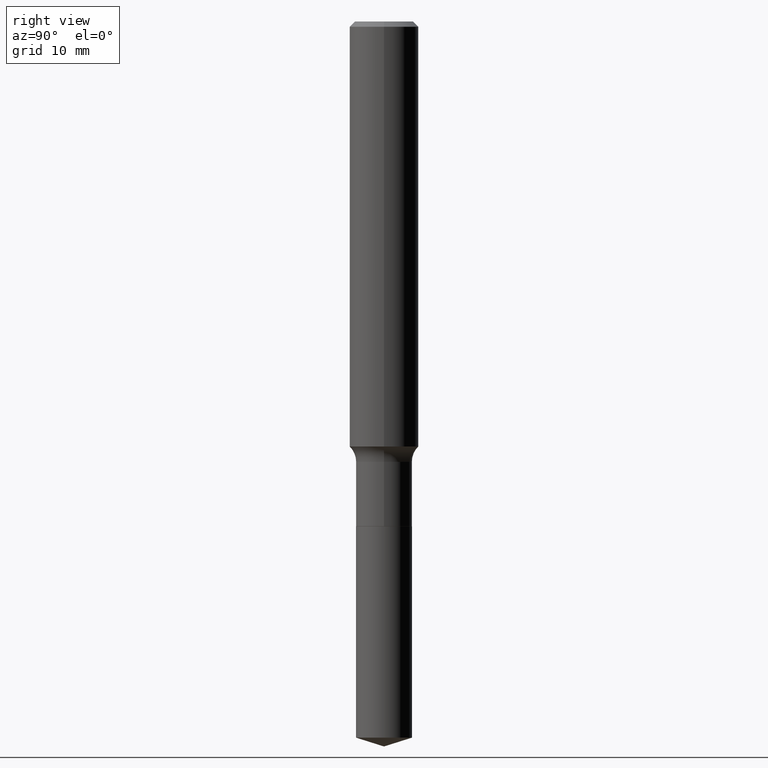
[diagram: clean part render]
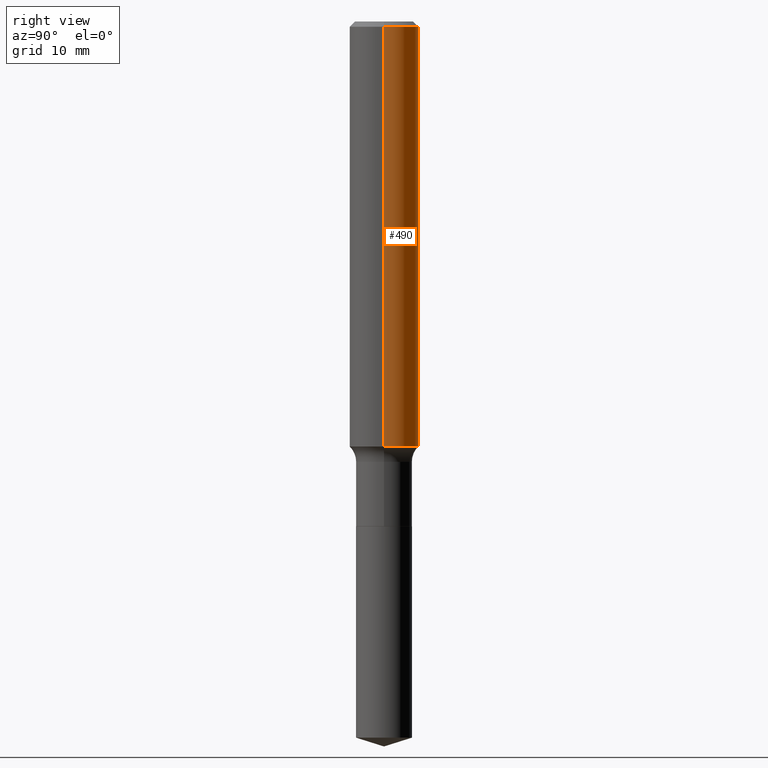
[diagram: same view with one face highlighted and labeled with its STEP entity id]
A machine part, right view. The second image highlights one B-rep face of the part: STEP entity #490.
In plain terms, the highlighted cylindrical surface (edge-blend (fillet) strip) has radius 3.175 mm, axis along (-0, 0, 1).
Its self-contained STEP definition (entity closure, byte-faithful):
#1 = DIRECTION ( 'NONE',  ( 1.000000000000000000, -6.982962677686266711E-15, 4.876176775795935232E-29 ) ) ;
#23 = DIRECTION ( 'NONE',  ( -2.445468806185136597E-29, 3.491481338843145583E-15, 1.000000000000000000 ) ) ;
#66 = CARTESIAN_POINT ( 'NONE',  ( -0.1250000000000002220, -4.484331131856369405E-15, -1.538747892416519214 ) ) ;
#75 = VERTEX_POINT ( 'NONE', #90 ) ;
#90 = CARTESIAN_POINT ( 'NONE',  ( 0.1250000000000000000, -9.383356098140928781E-16, -0.01875000000000013115 ) ) ;
#93 = EDGE_CURVE ( 'NONE', #120, #427, #316, .T. ) ;
#99 = DIRECTION ( 'NONE',  ( -2.445468806185136877E-29, 3.491481338843145188E-15, 1.000000000000000000 ) ) ;
#105 = EDGE_LOOP ( 'NONE', ( #158, #422, #469, #398 ) ) ;
#114 = CYLINDRICAL_SURFACE ( 'NONE', #400, 0.1250000000000001110 ) ;
#120 = VERTEX_POINT ( 'NONE', #386 ) ;
#144 = DIRECTION ( 'NONE',  ( -2.445468806185136877E-29, 3.491481338843145188E-15, 1.000000000000000000 ) ) ;
#154 = VERTEX_POINT ( 'NONE', #381 ) ;
#158 = ORIENTED_EDGE ( 'NONE', *, *, #93, .T. ) ;
#160 = DIRECTION ( 'NONE',  ( -2.445468806185136597E-29, 3.491481338843145583E-15, 1.000000000000000000 ) ) ;
#164 = CARTESIAN_POINT ( 'NONE',  ( 3.762959971487720455E-29, -5.372509551556497004E-15, -1.538747892416519214 ) ) ;
#188 = EDGE_CURVE ( 'NONE', #427, #154, #318, .T. ) ;
#189 = DIRECTION ( 'NONE',  ( -2.445468806185136597E-29, 3.491481338843145583E-15, 1.000000000000000000 ) ) ;
#202 = AXIS2_PLACEMENT_3D ( 'NONE', #164, #23, #246 ) ;
#203 = EDGE_CURVE ( 'NONE', #75, #154, #205, .T. ) ;
#205 = CIRCLE ( 'NONE', #241, 0.1250000000000000000 ) ;
#234 = FACE_OUTER_BOUND ( 'NONE', #105, .T. ) ;
#240 = VECTOR ( 'NONE', #144, 39.37007874015748143 ) ;
#241 = AXIS2_PLACEMENT_3D ( 'NONE', #275, #160, #467 ) ;
#246 = DIRECTION ( 'NONE',  ( 1.000000000000000000, -6.982962677686267499E-15, 0.000000000000000000 ) ) ;
#272 = VECTOR ( 'NONE', #99, 39.37007874015748143 ) ;
#275 = CARTESIAN_POINT ( 'NONE',  ( 4.585254011597162998E-31, -6.546527510330944066E-17, -0.01875000000000013115 ) ) ;
#297 = LINE ( 'NONE', #432, #272 ) ;
#311 = CARTESIAN_POINT ( 'NONE',  ( 0.000000000000000000, 0.000000000000000000, 0.000000000000000000 ) ) ;
#316 = CIRCLE ( 'NONE', #202, 0.1250000000000001943 ) ;
#318 = LINE ( 'NONE', #347, #240 ) ;
#347 = CARTESIAN_POINT ( 'NONE',  ( -0.1250000000000001110, 8.881784197001260212E-16, -6.148668862818637832E-30 ) ) ;
#381 = CARTESIAN_POINT ( 'NONE',  ( -0.1250000000000000000, -1.830808993629777053E-15, -0.01875000000000013115 ) ) ;
#386 = CARTESIAN_POINT ( 'NONE',  ( 0.1250000000000002220, -6.245379886267282709E-15, -1.538747892416519214 ) ) ;
#398 = ORIENTED_EDGE ( 'NONE', *, *, #455, .F. ) ;
#400 = AXIS2_PLACEMENT_3D ( 'NONE', #311, #189, #1 ) ;
#422 = ORIENTED_EDGE ( 'NONE', *, *, #188, .T. ) ;
#427 = VERTEX_POINT ( 'NONE', #66 ) ;
#432 = CARTESIAN_POINT ( 'NONE',  ( 0.1250000000000001110, -8.728703347107841277E-16, 6.095220969744924646E-30 ) ) ;
#455 = EDGE_CURVE ( 'NONE', #120, #75, #297, .T. ) ;
#467 = DIRECTION ( 'NONE',  ( 1.000000000000000000, -6.982962677686266711E-15, 0.000000000000000000 ) ) ;
#469 = ORIENTED_EDGE ( 'NONE', *, *, #203, .F. ) ;
#490 = ADVANCED_FACE ( 'NONE', ( #234 ), #114, .T. ) ;